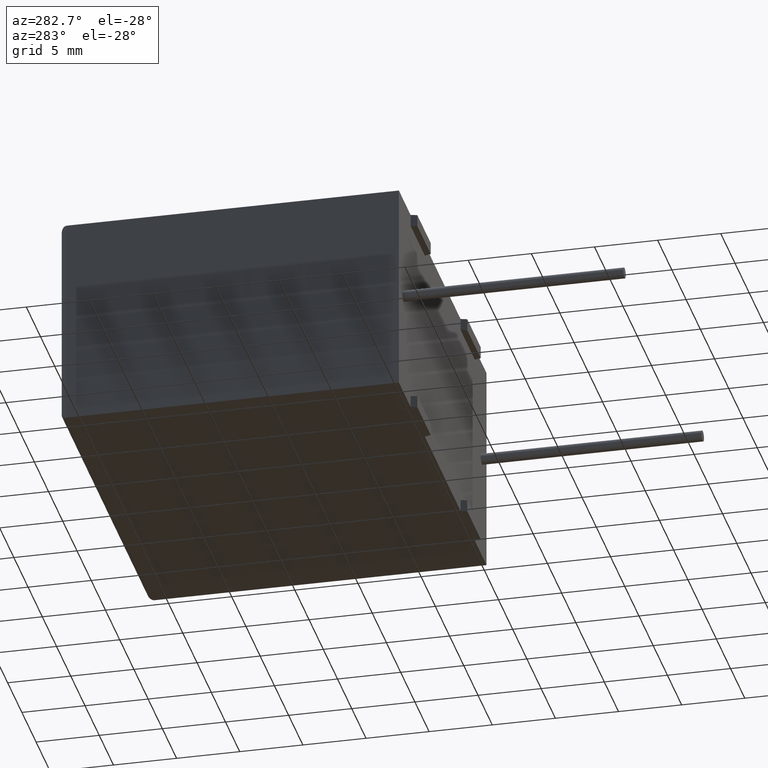
[diagram: clean part render]
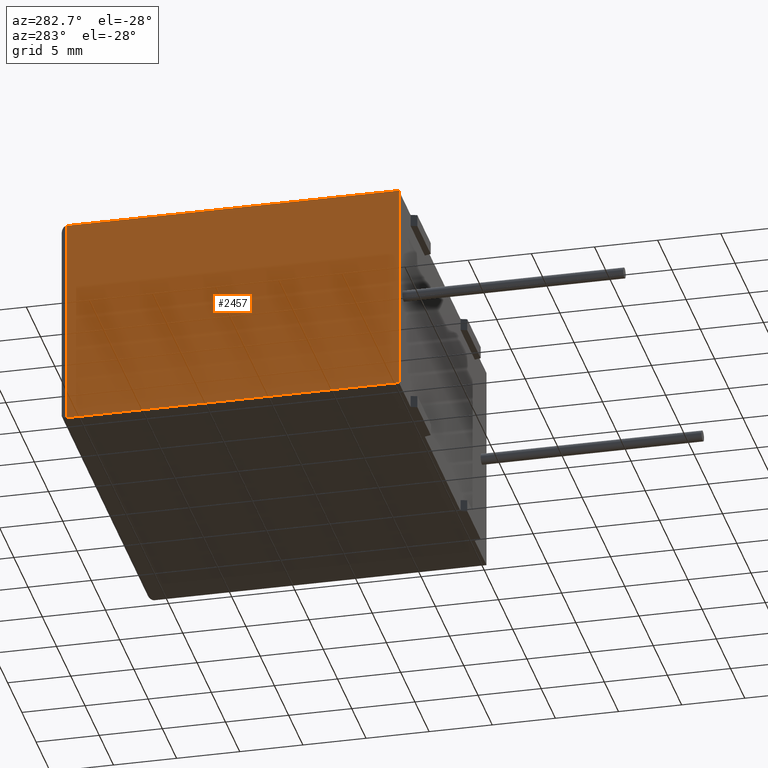
[diagram: same view with one face highlighted and labeled with its STEP entity id]
A machine part, auxiliary view. The second image highlights one B-rep face of the part: STEP entity #2457.
In plain terms, the highlighted planar face has unit normal (1, 0, 0).
Its self-contained STEP definition (entity closure, byte-faithful):
#288 = DIRECTION ( 'NONE',  ( 1.000000000000000000, 0.0000000000000000000, 0.0000000000000000000 ) ) ;
#308 = LINE ( 'NONE', #1924, #2751 ) ;
#445 = ORIENTED_EDGE ( 'NONE', *, *, #1445, .F. ) ;
#500 = VECTOR ( 'NONE', #2510, 1000.000000000000000 ) ;
#514 = CARTESIAN_POINT ( 'NONE',  ( 0.0000000000000000000, 0.0000000000000000000, 16.80000000000000100 ) ) ;
#515 = DIRECTION ( 'NONE',  ( 0.0000000000000000000, 0.0000000000000000000, -1.000000000000000000 ) ) ;
#603 = ORIENTED_EDGE ( 'NONE', *, *, #1182, .T. ) ;
#691 = LINE ( 'NONE', #2068, #2816 ) ;
#882 = VERTEX_POINT ( 'NONE', #2815 ) ;
#1055 = CARTESIAN_POINT ( 'NONE',  ( 0.0000000000000000000, 26.30000000000000100, 16.80000000000000100 ) ) ;
#1182 = EDGE_CURVE ( 'NONE', #1421, #882, #2851, .T. ) ;
#1273 = EDGE_CURVE ( 'NONE', #882, #2983, #1574, .T. ) ;
#1421 = VERTEX_POINT ( 'NONE', #1055 ) ;
#1445 = EDGE_CURVE ( 'NONE', #1836, #2983, #691, .T. ) ;
#1521 = ORIENTED_EDGE ( 'NONE', *, *, #1273, .T. ) ;
#1574 = LINE ( 'NONE', #2273, #500 ) ;
#1836 = VERTEX_POINT ( 'NONE', #514 ) ;
#1862 = EDGE_LOOP ( 'NONE', ( #2722, #603, #1521, #445 ) ) ;
#1924 = CARTESIAN_POINT ( 'NONE',  ( 0.0000000000000000000, 0.0000000000000000000, 16.80000000000000100 ) ) ;
#1989 = FACE_OUTER_BOUND ( 'NONE', #1862, .T. ) ;
#2021 = DIRECTION ( 'NONE',  ( -0.0000000000000000000, -0.0000000000000000000, -1.000000000000000000 ) ) ;
#2040 = CARTESIAN_POINT ( 'NONE',  ( 0.0000000000000000000, 0.0000000000000000000, 16.80000000000000100 ) ) ;
#2068 = CARTESIAN_POINT ( 'NONE',  ( 0.0000000000000000000, 0.0000000000000000000, 16.80000000000000100 ) ) ;
#2273 = CARTESIAN_POINT ( 'NONE',  ( 0.0000000000000000000, 0.0000000000000000000, 0.0000000000000000000 ) ) ;
#2457 = ADVANCED_FACE ( 'NONE', ( #1989 ), #2798, .F. ) ;
#2510 = DIRECTION ( 'NONE',  ( -0.0000000000000000000, -1.000000000000000000, -0.0000000000000000000 ) ) ;
#2611 = AXIS2_PLACEMENT_3D ( 'NONE', #2040, #288, #515 ) ;
#2722 = ORIENTED_EDGE ( 'NONE', *, *, #3057, .F. ) ;
#2751 = VECTOR ( 'NONE', #3191, 1000.000000000000000 ) ;
#2798 = PLANE ( 'NONE',  #2611 ) ;
#2815 = CARTESIAN_POINT ( 'NONE',  ( 0.0000000000000000000, 26.30000000000000100, 0.0000000000000000000 ) ) ;
#2816 = VECTOR ( 'NONE', #2021, 1000.000000000000000 ) ;
#2851 = LINE ( 'NONE', #2907, #3047 ) ;
#2854 = CARTESIAN_POINT ( 'NONE',  ( 0.0000000000000000000, 0.0000000000000000000, 0.0000000000000000000 ) ) ;
#2907 = CARTESIAN_POINT ( 'NONE',  ( 0.0000000000000000000, 26.30000000000000100, 16.80000000000000100 ) ) ;
#2983 = VERTEX_POINT ( 'NONE', #2854 ) ;
#3047 = VECTOR ( 'NONE', #3157, 1000.000000000000000 ) ;
#3057 = EDGE_CURVE ( 'NONE', #1421, #1836, #308, .T. ) ;
#3157 = DIRECTION ( 'NONE',  ( 0.0000000000000000000, 0.0000000000000000000, -1.000000000000000000 ) ) ;
#3191 = DIRECTION ( 'NONE',  ( -0.0000000000000000000, -1.000000000000000000, -0.0000000000000000000 ) ) ;